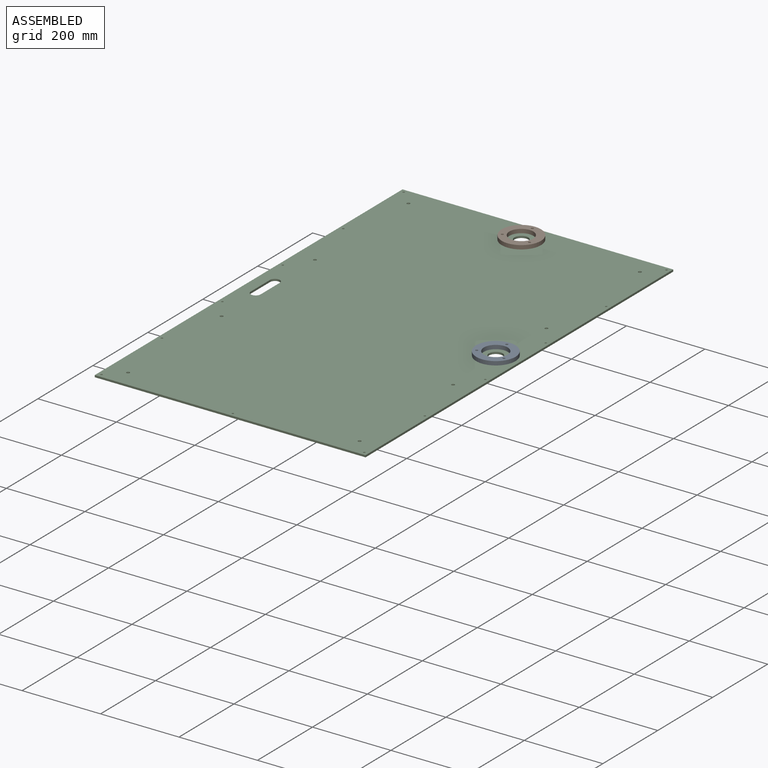
[diagram: assembled view]
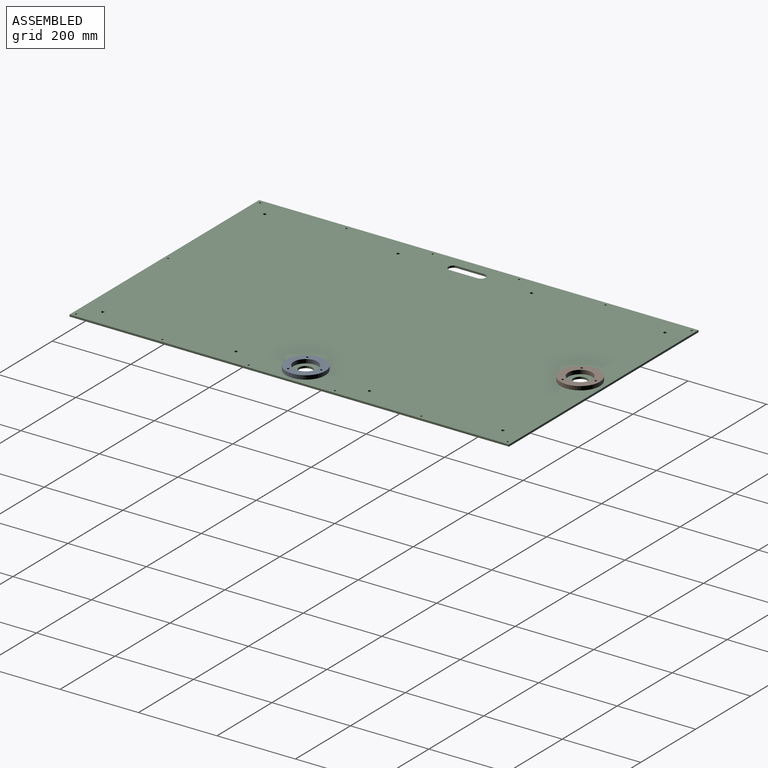
[diagram: assembled view, second angle]
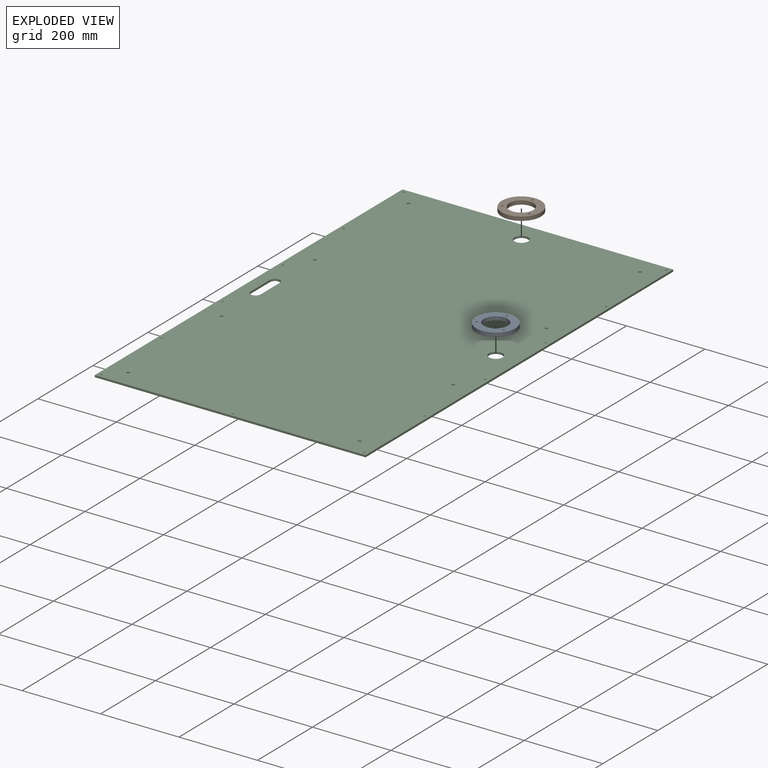
[diagram: exploded view]
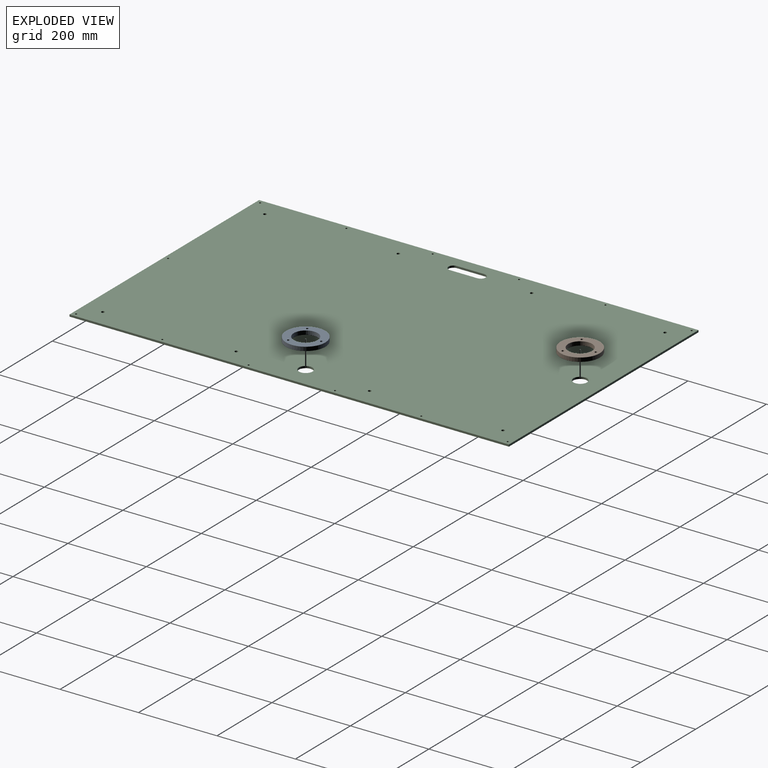
[diagram: exploded view, second angle]
ASSEMBLY  parts=3 mates=2
PART A: 7 faces, bbox 100x100x10 mm
  f0: cylinder r=30.5mm len=61mm, axis (0,0,-1), area 1916.4mm2, adj f2,f3
  f1: cylinder r=50mm len=100mm, axis (0,0,-1), area 3141.6mm2, adj f2,f3
  f2: plane 100x100mm, normal (0,0,1), area 4846.7mm2, adj f0,f1,f4,f5,f6
  f3: plane 100x100mm, normal (0,0,-1), area 4846.7mm2, adj f0,f1,f4,f5,f6
  f4: cylinder r=3mm len=10mm, axis (0,0,1), area 188.5mm2, adj f2,f3
  f5: cylinder r=3mm len=10mm, axis (0,0,1), area 188.5mm2, adj f2,f3
  f6: cylinder r=3mm len=10mm, axis (0,0,1), area 188.5mm2, adj f2,f3
PART B: same geometry as A
PART C: 33 faces, bbox 690x1120x5 mm
  f0: plane 1120x690mm, normal (0,0,1), area 767977.5mm2, adj f2,f3,f4,f5,f6,f7,f8,f9
  f1: plane 1120x690mm, normal (0,0,-1), area 767977.5mm2, adj f2,f3,f4,f5,f6,f7,f8,f9
  f2: plane 690x5mm, normal (0,-1,0), area 3450mm2, adj f0,f1,f3,f5
  f3: plane 1120x5mm, normal (1,0,0), area 5600mm2, adj f0,f1,f2,f4
  f4: plane 690x5mm, normal (0,1,0), area 3450mm2, adj f0,f1,f3,f5
  f5: plane 1120x5mm, normal (-1,0,0), area 5600mm2, adj f0,f1,f2,f4
  f6: cylinder r=4mm len=8mm, axis (0,0,1), area 125.7mm2, adj f0,f1
  f7: cylinder r=4mm len=8mm, axis (0,0,1), area 125.7mm2, adj f0,f1
  f8: cylinder r=4mm len=8mm, axis (0,0,1), area 125.7mm2, adj f0,f1
  f9: cylinder r=4mm len=8mm, axis (0,0,1), area 125.7mm2, adj f0,f1
  f10: cylinder r=4mm len=8mm, axis (0,0,1), area 125.7mm2, adj f0,f1
  f11: cylinder r=4mm len=8mm, axis (0,0,1), area 125.7mm2, adj f0,f1
  f12: cylinder r=4mm len=8mm, axis (0,0,1), area 125.7mm2, adj f0,f1
  f13: cylinder r=4mm len=8mm, axis (0,0,1), area 125.7mm2, adj f0,f1
  f14: cylinder r=17.5mm len=35mm, axis (0,0,1), area 549.8mm2, adj f0,f1
  f15: cylinder r=17.5mm len=35mm, axis (0,0,1), area 549.8mm2, adj f0,f1
  f16: cylinder r=2.5mm len=5mm, axis (0,0,1), area 78.5mm2, adj f0,f1
  f17: cylinder r=2.5mm len=5mm, axis (0,0,1), area 78.5mm2, adj f0,f1
  f18: cylinder r=2.5mm len=5mm, axis (0,0,1), area 78.5mm2, adj f0,f1
  f19: cylinder r=2.5mm len=5mm, axis (0,0,1), area 78.5mm2, adj f0,f1
  f20: cylinder r=2.5mm len=5mm, axis (0,0,1), area 78.5mm2, adj f0,f1
  f21: cylinder r=2.5mm len=5mm, axis (0,0,1), area 78.5mm2, adj f0,f1
  f22: cylinder r=2.5mm len=5mm, axis (0,0,1), area 78.5mm2, adj f0,f1
  f23: cylinder r=2.5mm len=5mm, axis (0,0,1), area 78.5mm2, adj f0,f1
  f24: cylinder r=2.5mm len=5mm, axis (0,0,1), area 78.5mm2, adj f0,f1
  f25: cylinder r=2.5mm len=5mm, axis (0,0,1), area 78.5mm2, adj f0,f1
  f26: cylinder r=2.5mm len=5mm, axis (0,0,1), area 78.5mm2, adj f0,f1
  f27: cylinder r=2.5mm len=5mm, axis (0,0,1), area 78.5mm2, adj f0,f1
  f28: cylinder r=2.5mm len=5mm, axis (0,0,1), area 78.5mm2, adj f0,f1
  f29: plane 70x5mm, normal (-1,0,0), area 350mm2, adj f0,f1,f30,f32
  f30: cylinder r=12.5mm len=25mm, axis (0,0,1), area 196.3mm2, adj f0,f1,f29,f31
  f31: plane 70x5mm, normal (1,0,0), area 350mm2, adj f0,f1,f30,f32
  f32: cylinder r=12.5mm len=25mm, axis (0,0,1), area 196.3mm2, adj f0,f1,f29,f31
PLACE A t=(240.93,-105.26,279.6)mm
PLACE B t=(-44.07,394.74,279.6)mm
PLACE C t=(-44.07,-105.26,274.6)mm fixed
MATE fastened C.f14 <-> A.f0  axis (0,0,1) through (240.93,-105.26,279.6)mm
MATE fastened B.f1 <-> C.f15  axis (0,0,-1) through (-44.07,394.74,279.6)mm
